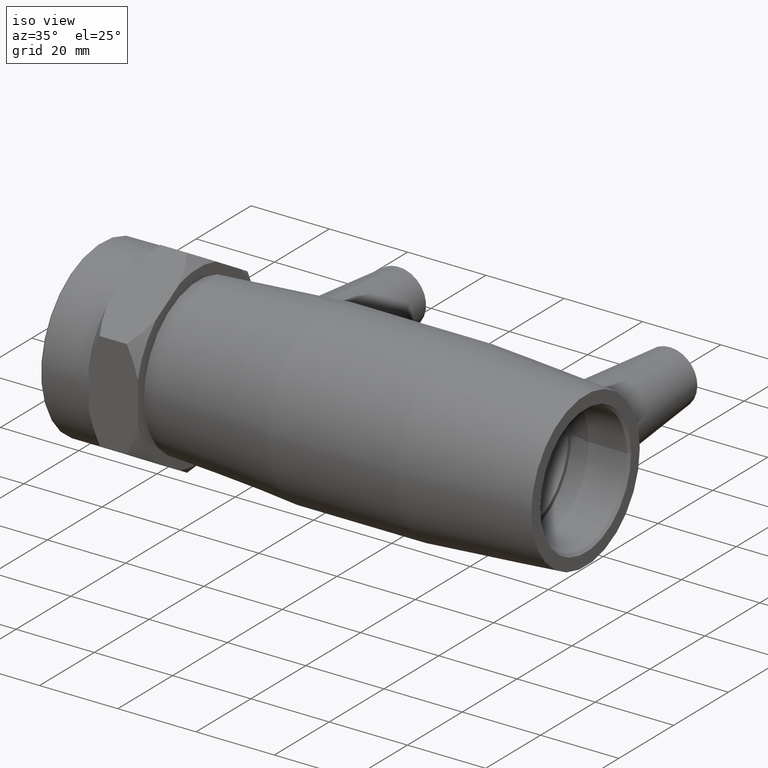
[diagram: clean part render]
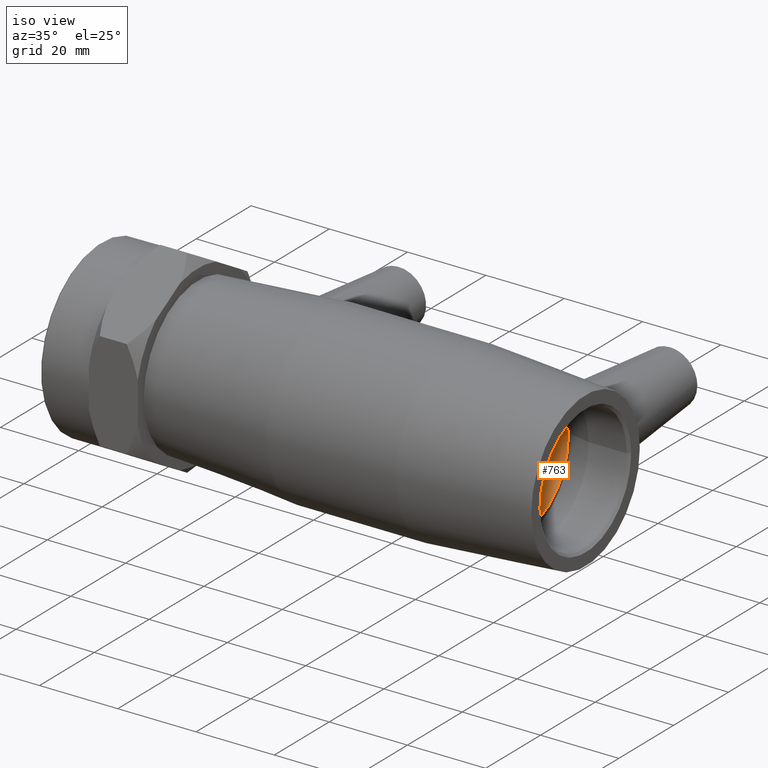
[diagram: same view with one face highlighted and labeled with its STEP entity id]
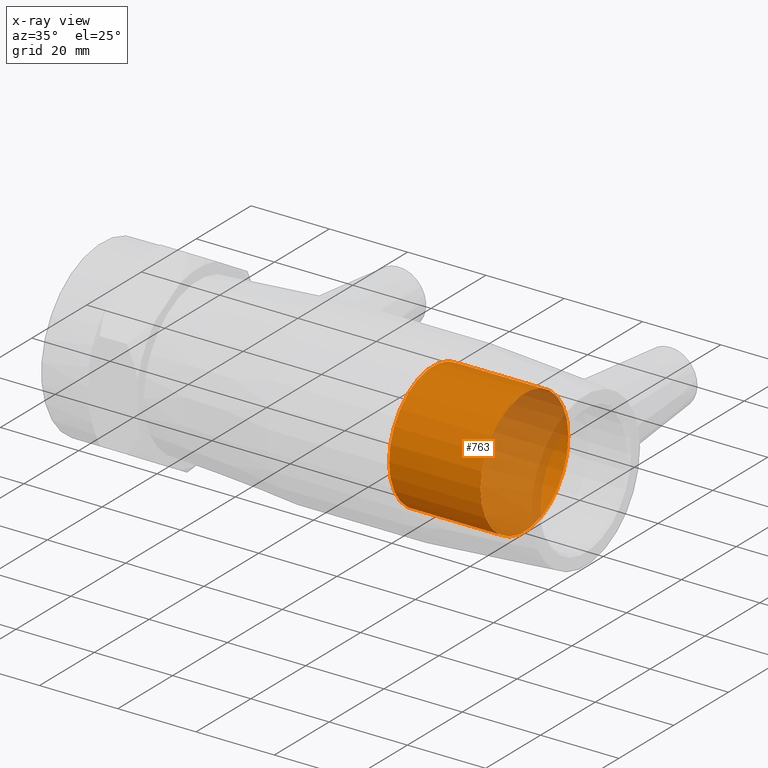
[diagram: x-ray of the same camera — body ghosted, the highlighted face saturated]
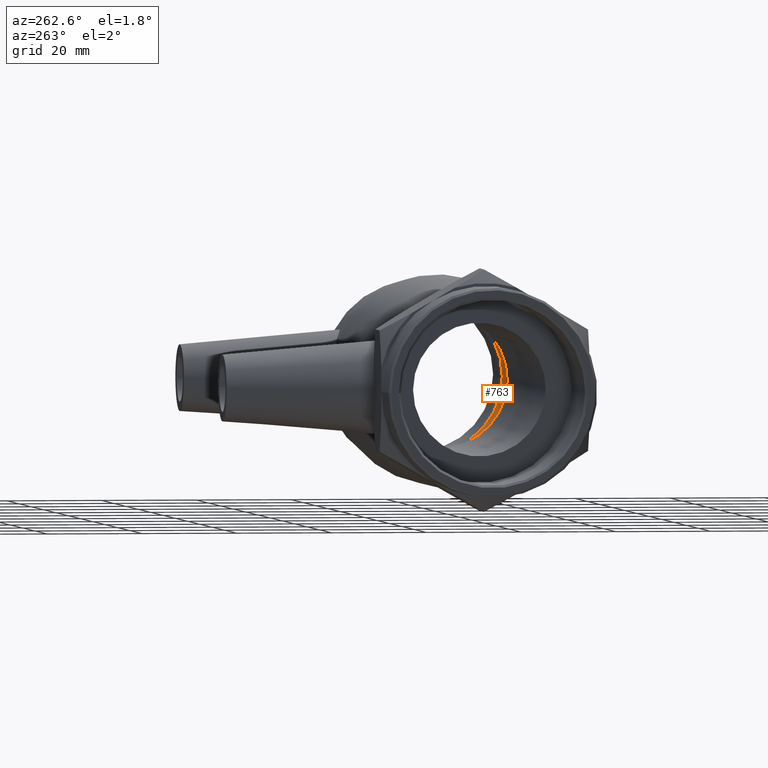
[diagram: same view with one face highlighted and labeled with its STEP entity id]
A machine part, iso view. The second image highlights one B-rep face of the part: STEP entity #763.
The next image is the same camera in x-ray: the body ghosted, the highlighted face saturated — about 35% of this face is hidden behind the body in this view.
A second angle (auxiliary view) of the same face is appended — the face is thin or edge-on in the first view.
In plain terms, the highlighted cylindrical surface (bore or boss wall) has radius 16 mm, axis along (1, 0, 0).
Its self-contained STEP definition (entity closure, byte-faithful):
#98=CYLINDRICAL_SURFACE('',#863,16.);
#149=FACE_BOUND('',#285,.T.);
#204=FACE_OUTER_BOUND('',#284,.T.);
#284=EDGE_LOOP('',(#685));
#285=EDGE_LOOP('',(#686));
#334=CIRCLE('',#862,16.);
#335=CIRCLE('',#864,16.);
#405=VERTEX_POINT('',#1419);
#406=VERTEX_POINT('',#1422);
#500=EDGE_CURVE('',#405,#405,#334,.T.);
#501=EDGE_CURVE('',#406,#406,#335,.T.);
#685=ORIENTED_EDGE('',*,*,#501,.F.);
#686=ORIENTED_EDGE('',*,*,#500,.T.);
#763=ADVANCED_FACE('',(#204,#149),#98,.F.);
#862=AXIS2_PLACEMENT_3D('',#1420,#1081,#1082);
#863=AXIS2_PLACEMENT_3D('',#1421,#1083,#1084);
#864=AXIS2_PLACEMENT_3D('',#1423,#1085,#1086);
#1081=DIRECTION('center_axis',(1.,0.,0.));
#1082=DIRECTION('ref_axis',(0.,0.,-1.));
#1083=DIRECTION('center_axis',(1.,0.,0.));
#1084=DIRECTION('ref_axis',(0.,1.,0.));
#1085=DIRECTION('center_axis',(1.,0.,0.));
#1086=DIRECTION('ref_axis',(0.,0.,-1.));
#1419=CARTESIAN_POINT('',(33.9,16.,0.));
#1420=CARTESIAN_POINT('Origin',(33.9,0.,0.));
#1421=CARTESIAN_POINT('Origin',(22.2,0.,0.));
#1422=CARTESIAN_POINT('',(10.5,16.,0.));
#1423=CARTESIAN_POINT('Origin',(10.5,0.,0.));